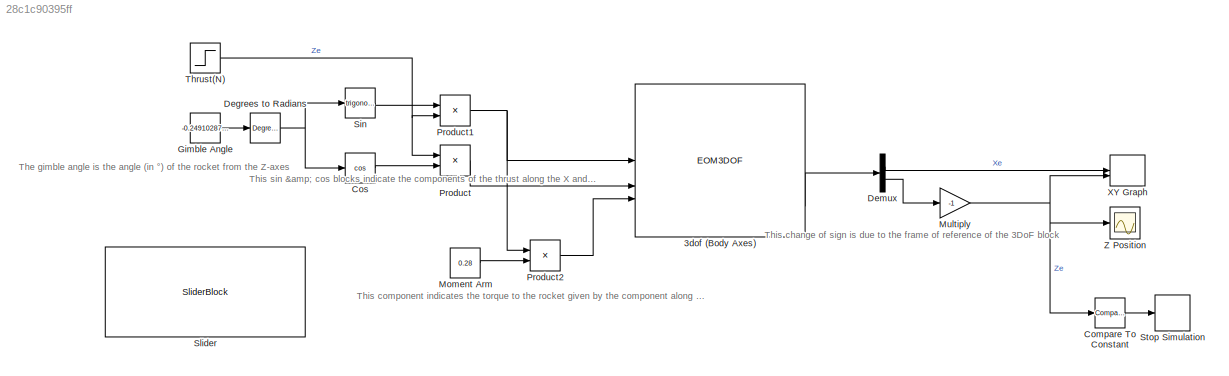
MODEL slx_28c1c90395ff
KIND model
CONFIG AbsTol = auto
CONFIG EnableMultiTasking = off
CONFIG FixedStep = auto
CONFIG MaxStep = auto
CONFIG MinStep = auto
CONFIG RelTol = 1e-3
CONFIG SampleTimeConstraint = Unconstrained
CONFIG SolverName = VariableStepAuto
CONFIG StartTime = 0.0
CONFIG StopTime = 15.0
BLOCK [EOM3DOF] 3dof (Body Axes)
  Iyy = 0.048
  mass = 0.543
  v_ini = 0
BLOCK [Reference] Compare To Constant  REF=simulink/Logic and Bit
Operations/Compare
To Constant
  SourceBlock = simulink/Logic and Bit\nOperations/Compare\nTo Constant
  SourceType = Compare To Constant
BLOCK [Trigonometry] Cos
  Operator = cos
BLOCK [Reference] Degrees to Radians  REF=simulink_extras/Transformations/Degrees to
Radians
  SourceBlock = simulink_extras/Transformations/Degrees to\nRadians
  SourceType = DegreesToRadians
BLOCK [Demux] Demux
  Outputs = 2
BLOCK [Constant] Gimble Angle
  Value = -0.2491028708133971
BLOCK [Constant] Moment Arm
  Value = 0.28
BLOCK [Gain] Multiply
  Gain = -1
BLOCK [Product] Product
BLOCK [Product] Product1
BLOCK [Product] Product2
BLOCK [Trigonometry] Sin
BLOCK [SliderBlock] Slider
  ScaleMax = 1
  ScaleMin = -1
  TickInterval = 0.5
BLOCK [Stop] Stop Simulation
BLOCK [Step] Thrust(N)
  After = 0
  Before = -15
  SampleTime = 0
  Time = 2
BLOCK [Record] XY Graph
  CompatibilityTag = XY
  FileSettingsInternal = {"entries":[{"content":{"excelSettings":{"content":{},"type":"Streamout.ExcelSettings"}},"type":"Streamout.FileSettingStorage","uuid":""}],"packageUris":["http:\/\/schema.mathworks.com\/mf0\/streamout_blocks\/R2020a"],"version":"1.0"}
  Layout = [1 1]
  SignalsInternal = {"entries":[{"content":{"signals":[{"content":{"blockPath":[],"dimensions":[1],"domain":"","lineColor":"#a2142f","plots":[ 1 ],"port":1,"sid":[""],"signalID":1,"signalName":"Xe"},"type":"RecordBlkView.Signal","uuid":""},{"content":{"blockPath":[],"dimensions":[1],"domain":"","lineColor":"#139fff","plots":[ 1 ],"port":2,"sid":[""],"signalID":2,"signalName":"Ze"},"type":"RecordBlkView.Signal","uuid"...<+150ch>
  VisualizationBindings = {"xyplotplugin":{"info":[{"series":[{"bindingParametersList":[{"parameter":"X-Axis","signalID":1,"signalName":"Xe"},{"parameter":"Y-Axis","signalID":2,"signalName":"Ze"}],"seriesID":0}],"subplotID":1}]}}
BLOCK [Scope] Z Position
  Floating = off
  NumInputPorts = 1
  ScopeSpecificationString = Simulink.scopes.TimeScopeBlockCfg('CurrentConfiguration', extmgr.ConfigurationSet(extmgr.Configuration('Core','General UI',true),extmgr.Configuration('Core','Source UI',true),extmgr.Configuration('Sources','WiredSimulink',true,'DataLoggingVariableName','ScopeData1'),extmgr.Configuration('Visuals','Time Domain',true,'SerializedDisplays',{struct('MinYLimReal','-11.08551','MaxYLimReal','99.76959','YL...<+1485ch>
ANNOTATION (root): The gimble angle is the angle (in °) of the rocket from the Z-axes
ANNOTATION (root): This change of sign is due to the frame of reference of the 3DoF block
ANNOTATION (root): This component indicates the torque to the rocket given by the component along the X axes
ANNOTATION (root): This sin & cos blocks indicate the components of the thrust along the X and Z axes
LINE 3dof (Body Axes):4 -> Demux:1
LINE Compare To Constant:1 -> Stop Simulation:1
LINE Cos:1 -> Product:2
NET Degrees to Radians:1 -> Cos:1, Sin:1
LINE Demux:1 -> XY Graph:1
LINE Demux:2 -> Multiply:1
LINE Gimble Angle:1 -> Degrees to Radians:1
LINE Moment Arm:1 -> Product2:2
NET Multiply:1 -> Compare To Constant:1, XY Graph:2, Z Position:1
NET Product1:1 -> 3dof (Body Axes):1, Product2:1
LINE Product2:1 -> 3dof (Body Axes):3
LINE Product:1 -> 3dof (Body Axes):2
LINE Sin:1 -> Product1:1
NET Thrust(N):1 -> Product1:2, Product:1
note: NET lines group one-source signal fan-out (src -> all destinations, sorted); 1:1 wires keep LINE
